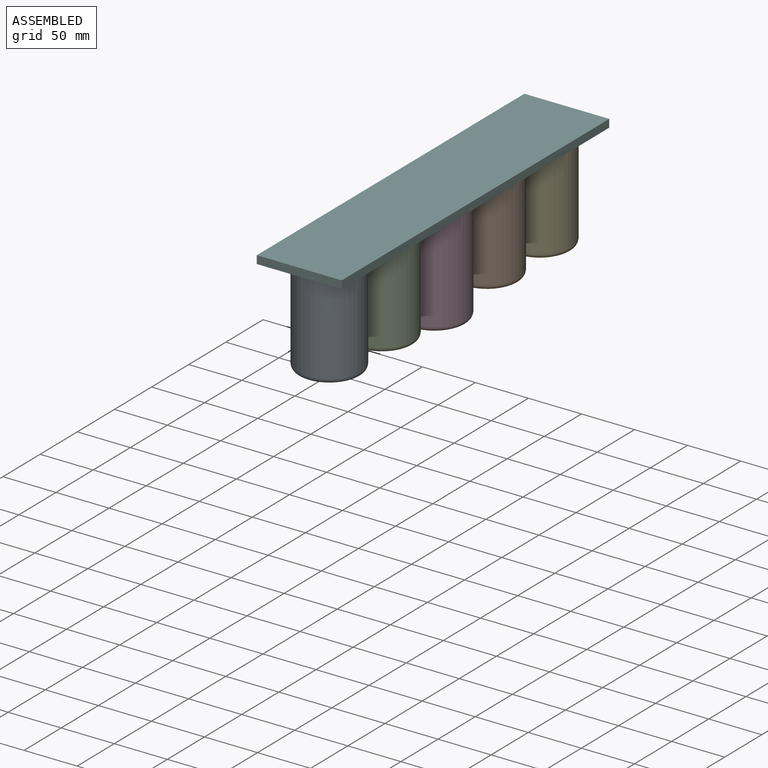
[diagram: assembled view]
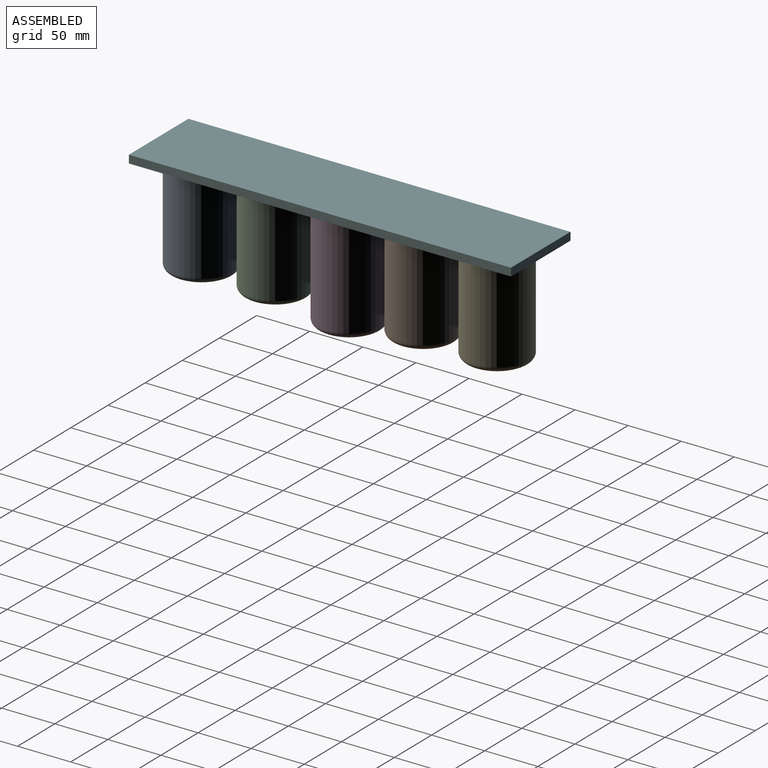
[diagram: assembled view, second angle]
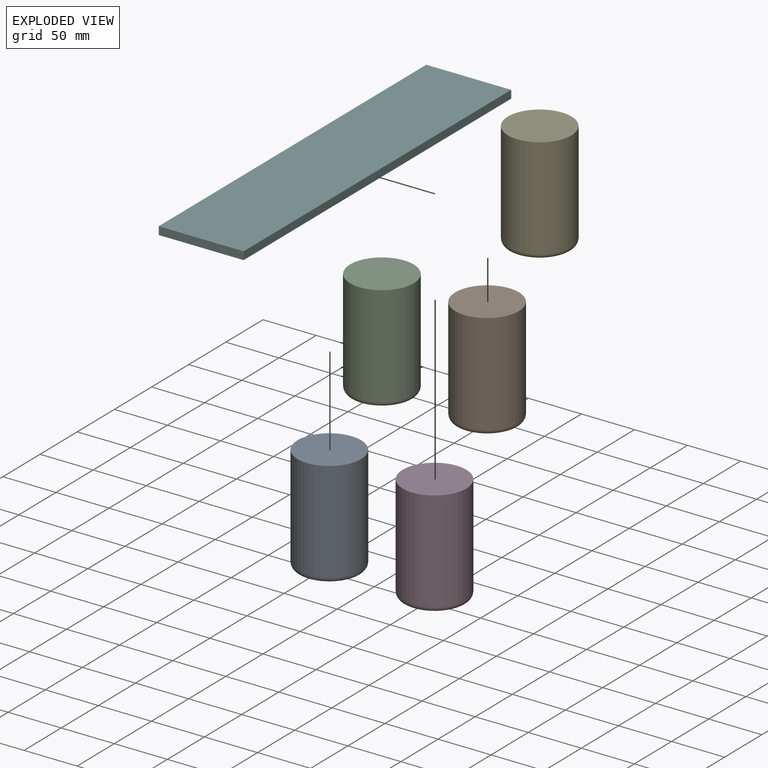
[diagram: exploded view]
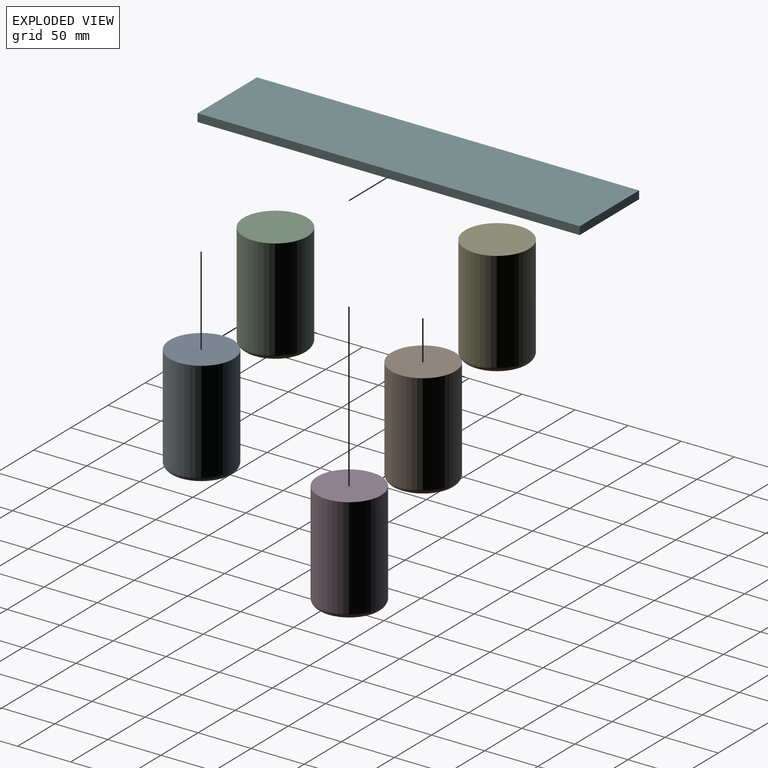
[diagram: exploded view, second angle]
ASSEMBLY  parts=6 mates=5
PART A: 4 faces, bbox 64.9x64.9x100 mm
  f0: cylinder r=30mm len=95mm, axis (0,0,-1), area 17907.1mm2, adj f2,f3
  f1: plane 50x50mm, normal (0,0,1), area 1963.5mm2, adj f3
  f2: plane 60x60mm, normal (0,0,-1), area 2827.4mm2, adj f0
  f3: torus R=25mm, axis (0,0,1), area 1390.8mm2, adj f0,f1
PART B: same geometry as A
PART C: same geometry as A
PART D: same geometry as A
PART E: same geometry as A
PART F: 21 faces, bbox 80x360x10 mm
  f0: cylinder r=29.88mm len=59.76mm, axis (0,0,1), area 1689.8mm2, adj f9,f20
  f1: cylinder r=29.88mm len=59.76mm, axis (0,0,1), area 1689.8mm2, adj f9,f19
  f2: cylinder r=29.88mm len=59.76mm, axis (0,0,1), area 1689.8mm2, adj f9,f18
  f3: cylinder r=29.88mm len=59.76mm, axis (0,0,1), area 1689.8mm2, adj f9,f17
  f4: cylinder r=29.88mm len=59.76mm, axis (0,0,1), area 1689.8mm2, adj f9,f16
  f5: plane 70x2.5mm, normal (0,-1,0), area 175mm2, adj f6,f8,f9,f15
  f6: plane 350x2.5mm, normal (1,0,0), area 875mm2, adj f5,f7,f9,f15
  f7: plane 70x2.5mm, normal (0,1,0), area 175mm2, adj f6,f8,f9,f15
  f8: plane 350x2.5mm, normal (-1,0,0), area 875mm2, adj f5,f7,f9,f15
  f9: plane 350x70mm, normal (0,0,-1), area 10474.1mm2, adj f0,f1,f2,f3,f4,f5,f6,f7
  f10: plane 360x80mm, normal (0,0,1), area 28800mm2, adj f11,f12,f13,f14
  f11: plane 80x7.5mm, normal (0,-1,0), area 600mm2, adj f10,f12,f14,f15
  f12: plane 360x7.5mm, normal (1,0,0), area 2700mm2, adj f10,f11,f13,f15
  f13: plane 80x7.5mm, normal (0,1,0), area 600mm2, adj f10,f12,f14,f15
  f14: plane 360x7.5mm, normal (-1,0,0), area 2700mm2, adj f10,f11,f13,f15
  f15: plane 360x80mm, normal (0,0,-1), area 4300mm2, adj f5,f6,f7,f8,f11,f12,f13,f14
  f16: plane 59.76x59.76mm, normal (0,0,-1), area 2805.2mm2, adj f4
  f17: plane 59.76x59.76mm, normal (0,0,-1), area 2805.2mm2, adj f3
  f18: plane 59.76x59.76mm, normal (0,0,-1), area 2805.2mm2, adj f2
  f19: plane 59.76x59.76mm, normal (0,0,-1), area 2805.2mm2, adj f1
  f20: plane 59.76x59.76mm, normal (0,0,-1), area 2805.2mm2, adj f0
PLACE A rot(axis=(1,0,0),180deg) t=(-81.34,-258.66,-89.62)mm
PLACE B rot(axis=(1,0,0),180deg) t=(-79.72,-48.67,-89.62)mm
PLACE C rot(axis=(1,0,0),180deg) t=(-80.8,-188.66,-89.62)mm
PLACE D rot(axis=(1,0,0),180deg) t=(-80.26,-118.67,-98.62)mm
PLACE E rot(axis=(1,0,0),180deg) t=(-79.18,21.33,-89.62)mm
PLACE F t=(-81.34,-119.12,-88.62)mm fixed
MATE fastened F.f4 <-> A.f0  axis (0,0,-1) through (-81.34,-258.66,-89.62)mm
MATE fastened E.f0 <-> F.f0  axis (0,0,1) through (-79.18,21.33,-89.62)mm
MATE fastened D.f0 <-> F.f2  axis (0,0,1) through (-80.26,-118.67,-98.62)mm
MATE fastened C.f0 <-> F.f3  axis (0,0,1) through (-80.8,-188.66,-89.62)mm
MATE fastened B.f0 <-> F.f1  axis (0,0,1) through (-79.72,-48.67,-89.62)mm
